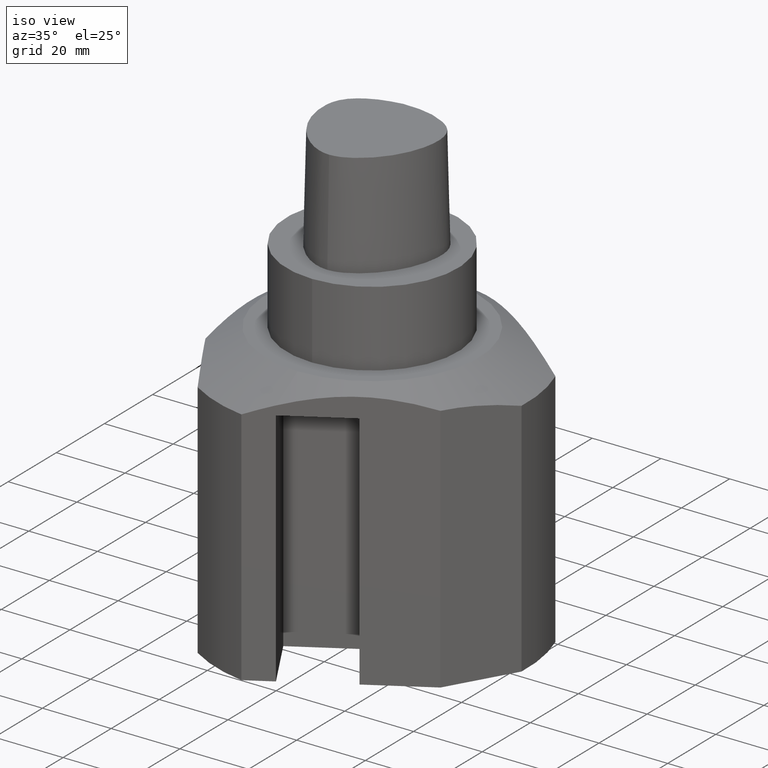
[diagram: clean part render]
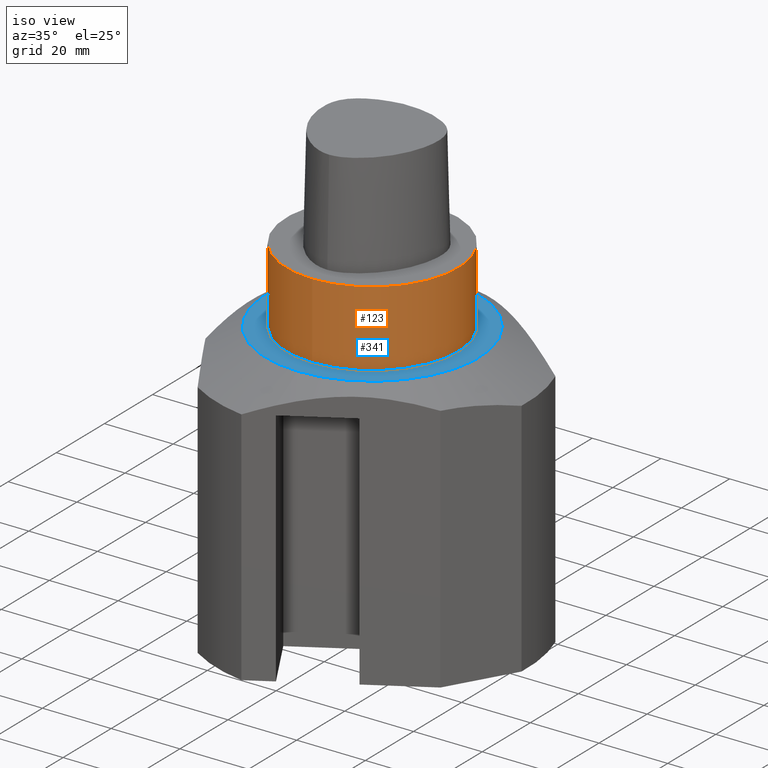
[diagram: same view with the hole feature highlighted: cylindrical wall and planar end face, labeled with their STEP entity ids]
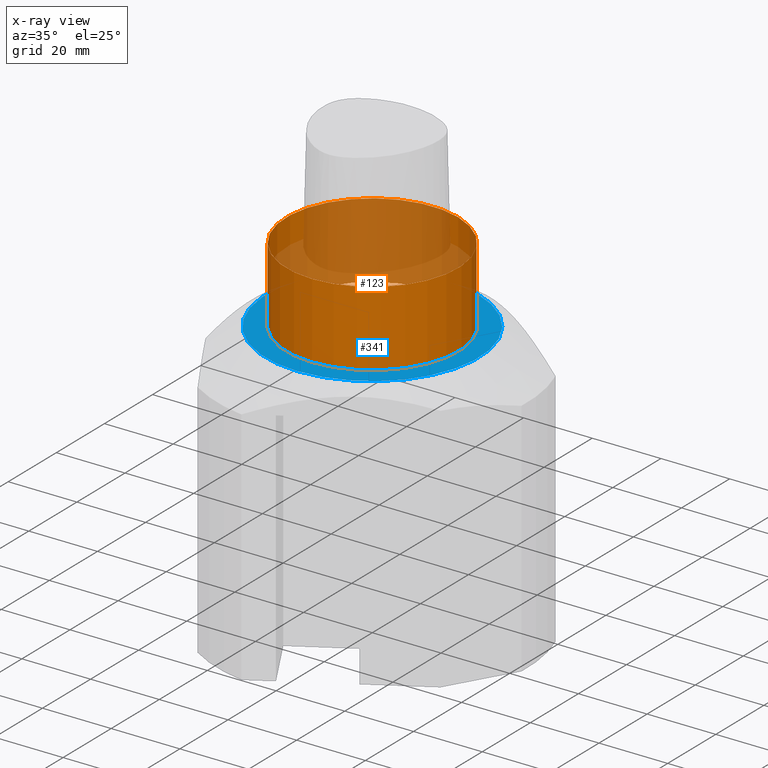
[diagram: x-ray of the same camera — body ghosted, the hole faces saturated]
A machine part, iso view. The highlighted faces form one hole feature of diameter 49.9798 mm: the cylindrical wall (entity #123, orange) and its adjacent planar end face (entity #341, blue) — they share a circular edge in the B-rep.
The next image is the same camera in x-ray (body ghosted, the hole faces saturated) — the bore reads through the body.
Wall:
#123=ADVANCED_FACE('240[2]',(#364,#365),#366,.T.);
#325=EDGE_CURVE('240[2]',#638,#638,#639,.T.);
#345=EDGE_CURVE('240[2]',#664,#664,#665,.T.);
#364=FACE_BOUND('',#675,.T.);
#365=FACE_BOUND('',#676,.T.);
#366=CYLINDRICAL_SURFACE('',#677,24.9898891324553);
#638=VERTEX_POINT('',#1722);
#639=CIRCLE('',#1723,24.9898891324553);
#664=VERTEX_POINT('',#1759);
#665=CIRCLE('',#1760,24.9898891324553);
#675=EDGE_LOOP('',(#1763));
#676=EDGE_LOOP('',(#1764));
#677=AXIS2_PLACEMENT_3D('',#1765,#1766,#1767);
#1722=CARTESIAN_POINT('',(-4.40749015423018E-015,-24.9898891324553,-21.9999983906745));
#1723=AXIS2_PLACEMENT_3D('',#2049,#2050,#2051);
#1759=CARTESIAN_POINT('',(-3.06037877371085E-015,-24.9898891324553,1.4210854715202E-014));
#1760=AXIS2_PLACEMENT_3D('',#2085,#2086,#2087);
#1763=ORIENTED_EDGE('',*,*,#325,.F.);
#1764=ORIENTED_EDGE('',*,*,#345,.T.);
#1765=CARTESIAN_POINT('',(-6.73555690259659E-016,0.0,-10.9999991953372));
#1766=DIRECTION('',(-6.12323399573677E-017,-1.22464679914735E-016,-1.0));
#1767=DIRECTION('',(-1.22464679914735E-016,-1.0,1.22464679914735E-016));
#2049=CARTESIAN_POINT('',(-1.34711138051932E-015,0.0,-21.9999983906745));
#2050=DIRECTION('',(-6.12323399573677E-017,-1.22464679914735E-016,-1.0));
#2051=DIRECTION('',(-1.22464679914735E-016,-1.0,1.22464679914735E-016));
#2085=CARTESIAN_POINT('',(3.15544362088405E-030,0.0,0.0));
#2086=DIRECTION('',(-6.12323399573677E-017,-1.22464679914735E-016,-1.0));
#2087=DIRECTION('',(-1.22464679914735E-016,-1.0,1.22464679914735E-016));
End face:
#183=EDGE_CURVE('240[2]',#459,#459,#460,.T.);
#325=EDGE_CURVE('240[2]',#638,#638,#639,.T.);
#341=ADVANCED_FACE('240[2]',(#658,#659),#660,.T.);
#459=VERTEX_POINT('',#879);
#460=CIRCLE('',#880,30.9999999591079);
#638=VERTEX_POINT('',#1722);
#639=CIRCLE('',#1723,24.9898891324553);
#658=FACE_OUTER_BOUND('',#1750,.T.);
#659=FACE_BOUND('',#1751,.T.);
#660=PLANE('',#1752);
#879=CARTESIAN_POINT('',(-5.14351645286827E-015,-30.9999999591079,-21.9999983906745));
#880=AXIS2_PLACEMENT_3D('',#1861,#1862,#1863);
#1722=CARTESIAN_POINT('',(-4.40749015423018E-015,-24.9898891324553,-21.9999983906745));
#1723=AXIS2_PLACEMENT_3D('',#2049,#2050,#2051);
#1750=EDGE_LOOP('',(#2079));
#1751=EDGE_LOOP('',(#2080));
#1752=AXIS2_PLACEMENT_3D('',#2081,#2082,#2083);
#1861=CARTESIAN_POINT('',(-1.34711138051932E-015,0.0,-21.9999983906745));
#1862=DIRECTION('',(-6.12323399573677E-017,-1.22464679914735E-016,-1.0));
#1863=DIRECTION('',(-1.22464679914735E-016,-1.0,1.22464679914735E-016));
#2049=CARTESIAN_POINT('',(-1.34711138051932E-015,0.0,-21.9999983906745));
#2050=DIRECTION('',(-6.12323399573677E-017,-1.22464679914735E-016,-1.0));
#2051=DIRECTION('',(-1.22464679914735E-016,-1.0,1.22464679914735E-016));
#2079=ORIENTED_EDGE('',*,*,#183,.F.);
#2080=ORIENTED_EDGE('',*,*,#325,.T.);
#2081=CARTESIAN_POINT('',(-4.77550330354922E-015,-27.9949445457816,-21.9999983906745));
#2082=DIRECTION('',(7.49879891330927E-033,1.22464679914735E-016,1.0));
#2083=DIRECTION('',(1.0,-6.12323399573677E-017,0.0));